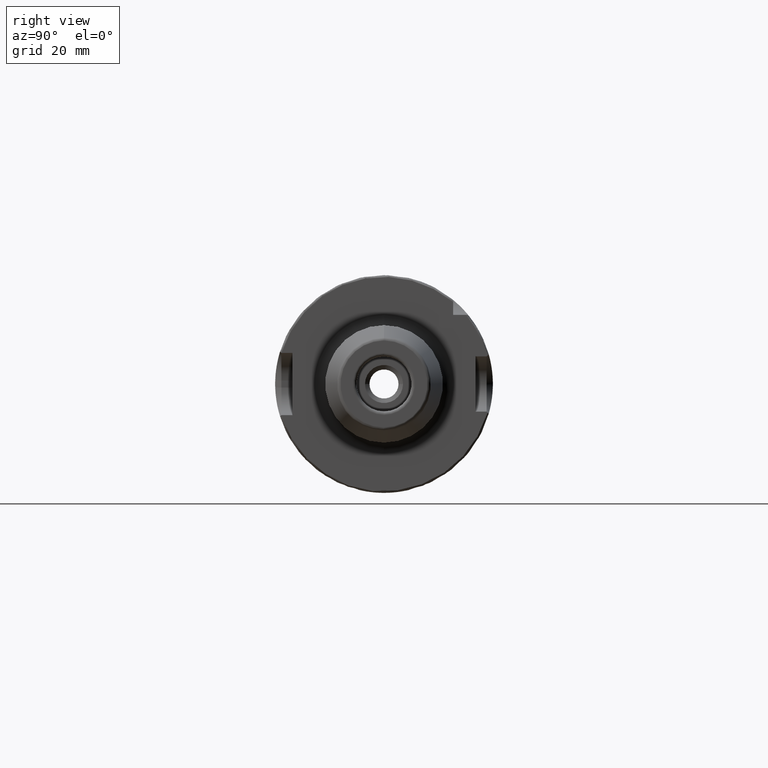
[diagram: clean part render]
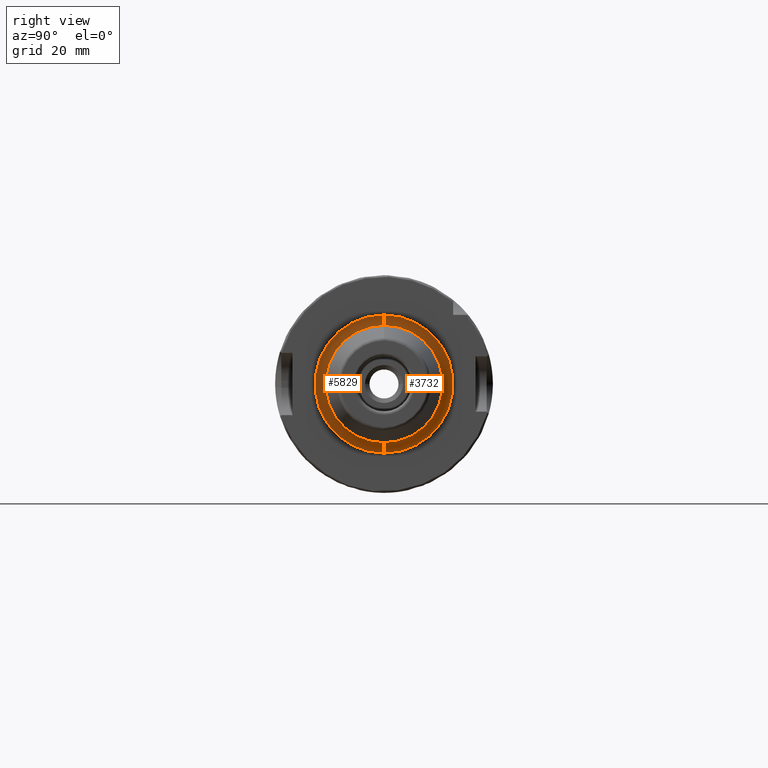
[diagram: same view with one multi-face feature highlighted, each face labeled with its STEP entity id]
A machine part, right view. The highlighted faces form ONE feature: a constant-radius fillet chain: 2 tangent blend faces with common blend radius 3 mm. The faces share edges in the B-rep.
Their STEP definitions:
[1] entity #3732 (Torus):
#625=CARTESIAN_POINT('',(2.9E1,0.E0,0.E0));
#626=DIRECTION('',(1.E0,0.E0,0.E0));
#627=DIRECTION('',(0.E0,0.E0,-1.E0));
#628=AXIS2_PLACEMENT_3D('',#625,#626,#627);
#670=CARTESIAN_POINT('',(2.6E1,0.E0,0.E0));
#671=DIRECTION('',(1.E0,0.E0,0.E0));
#672=DIRECTION('',(0.E0,0.E0,-1.E0));
#673=AXIS2_PLACEMENT_3D('',#670,#671,#672);
#2473=CARTESIAN_POINT('',(2.9E1,0.E0,2.E1));
#2474=DIRECTION('',(0.E0,1.E0,0.E0));
#2475=DIRECTION('',(0.E0,0.E0,-1.E0));
#2476=AXIS2_PLACEMENT_3D('',#2473,#2474,#2475);
#2483=CARTESIAN_POINT('',(2.9E1,0.E0,-2.E1));
#2484=DIRECTION('',(0.E0,-1.E0,0.E0));
#2485=DIRECTION('',(0.E0,0.E0,1.E0));
#2486=AXIS2_PLACEMENT_3D('',#2483,#2484,#2485);
#2960=CARTESIAN_POINT('',(2.9E1,0.E0,-1.7E1));
#2961=VERTEX_POINT('',#2960);
#2982=CARTESIAN_POINT('',(2.9E1,0.E0,1.7E1));
#2983=VERTEX_POINT('',#2982);
#2984=CARTESIAN_POINT('',(2.6E1,0.E0,-2.E1));
#2985=CARTESIAN_POINT('',(2.6E1,0.E0,2.E1));
#2986=VERTEX_POINT('',#2984);
#2987=VERTEX_POINT('',#2985);
#3718=CARTESIAN_POINT('',(2.9E1,0.E0,0.E0));
#3719=DIRECTION('',(1.E0,0.E0,0.E0));
#3720=DIRECTION('',(0.E0,0.E0,1.E0));
#3721=AXIS2_PLACEMENT_3D('',#3718,#3719,#3720);
#3722=TOROIDAL_SURFACE('',#3721,2.E1,3.E0);
#3724=ORIENTED_EDGE('',*,*,#3723,.F.);
#3726=ORIENTED_EDGE('',*,*,#3725,.F.);
#3727=ORIENTED_EDGE('',*,*,#3713,.T.);
#3729=ORIENTED_EDGE('',*,*,#3728,.T.);
#3730=EDGE_LOOP('',(#3724,#3726,#3727,#3729));
#3731=FACE_OUTER_BOUND('',#3730,.F.);
#3732=ADVANCED_FACE('',(#3731),#3722,.F.);
#629=CIRCLE('',#628,1.7E1);
#674=CIRCLE('',#673,2.E1);
#2477=CIRCLE('',#2476,3.E0);
#2487=CIRCLE('',#2486,3.E0);
#3713=EDGE_CURVE('',#2961,#2983,#629,.T.);
#3723=EDGE_CURVE('',#2986,#2987,#674,.T.);
#3725=EDGE_CURVE('',#2961,#2986,#2487,.T.);
#3728=EDGE_CURVE('',#2983,#2987,#2477,.T.);
[2] entity #5829 (Torus):
#675=CARTESIAN_POINT('',(2.6E1,0.E0,0.E0));
#676=DIRECTION('',(1.E0,0.E0,0.E0));
#677=DIRECTION('',(0.E0,0.E0,1.E0));
#678=AXIS2_PLACEMENT_3D('',#675,#676,#677);
#2473=CARTESIAN_POINT('',(2.9E1,0.E0,2.E1));
#2474=DIRECTION('',(0.E0,1.E0,0.E0));
#2475=DIRECTION('',(0.E0,0.E0,-1.E0));
#2476=AXIS2_PLACEMENT_3D('',#2473,#2474,#2475);
#2478=CARTESIAN_POINT('',(2.9E1,0.E0,0.E0));
#2479=DIRECTION('',(-1.E0,0.E0,0.E0));
#2480=DIRECTION('',(0.E0,0.E0,-1.E0));
#2481=AXIS2_PLACEMENT_3D('',#2478,#2479,#2480);
#2483=CARTESIAN_POINT('',(2.9E1,0.E0,-2.E1));
#2484=DIRECTION('',(0.E0,-1.E0,0.E0));
#2485=DIRECTION('',(0.E0,0.E0,1.E0));
#2486=AXIS2_PLACEMENT_3D('',#2483,#2484,#2485);
#2960=CARTESIAN_POINT('',(2.9E1,0.E0,-1.7E1));
#2961=VERTEX_POINT('',#2960);
#2982=CARTESIAN_POINT('',(2.9E1,0.E0,1.7E1));
#2983=VERTEX_POINT('',#2982);
#2984=CARTESIAN_POINT('',(2.6E1,0.E0,-2.E1));
#2985=CARTESIAN_POINT('',(2.6E1,0.E0,2.E1));
#2986=VERTEX_POINT('',#2984);
#2987=VERTEX_POINT('',#2985);
#5818=CARTESIAN_POINT('',(2.9E1,0.E0,0.E0));
#5819=DIRECTION('',(1.E0,0.E0,0.E0));
#5820=DIRECTION('',(0.E0,0.E0,1.E0));
#5821=AXIS2_PLACEMENT_3D('',#5818,#5819,#5820);
#5822=TOROIDAL_SURFACE('',#5821,2.E1,3.E0);
#5823=ORIENTED_EDGE('',*,*,#3767,.F.);
#5824=ORIENTED_EDGE('',*,*,#3728,.F.);
#5825=ORIENTED_EDGE('',*,*,#3697,.F.);
#5826=ORIENTED_EDGE('',*,*,#3725,.T.);
#5827=EDGE_LOOP('',(#5823,#5824,#5825,#5826));
#5828=FACE_OUTER_BOUND('',#5827,.F.);
#5829=ADVANCED_FACE('',(#5828),#5822,.F.);
#679=CIRCLE('',#678,2.E1);
#2477=CIRCLE('',#2476,3.E0);
#2482=CIRCLE('',#2481,1.7E1);
#2487=CIRCLE('',#2486,3.E0);
#3697=EDGE_CURVE('',#2961,#2983,#2482,.T.);
#3725=EDGE_CURVE('',#2961,#2986,#2487,.T.);
#3728=EDGE_CURVE('',#2983,#2987,#2477,.T.);
#3767=EDGE_CURVE('',#2987,#2986,#679,.T.);